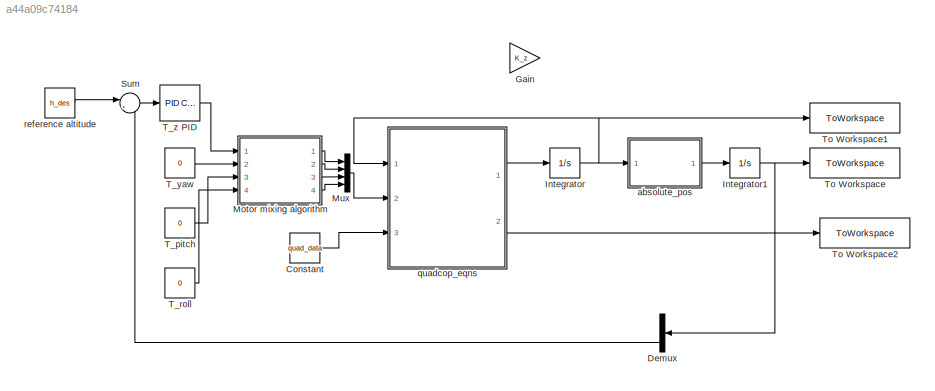
MODEL slx_a44a09c74184
KIND model
CONFIG AbsTol = auto
CONFIG EnableMultiTasking = off
CONFIG FixedStep = auto
CONFIG MaxStep = auto
CONFIG MinStep = auto
CONFIG RelTol = 1e-3
CONFIG SampleTimeConstraint = Unconstrained
CONFIG SolverName = VariableStepAuto
CONFIG StartTime = 0.0
CONFIG StopTime = 10
BLOCK [Constant] Constant
  Value = quad_data
BLOCK [Demux] Demux
  Outputs = 3
  Ports = [1, 3]
BLOCK [Gain] Gain
  Gain = K_z
BLOCK [Integrator] Integrator
  InitialCondition = y_init_conds
  Ports = [1, 1]
BLOCK [Integrator] Integrator1
  InitialCondition = [0 0 0]
  Ports = [1, 1]
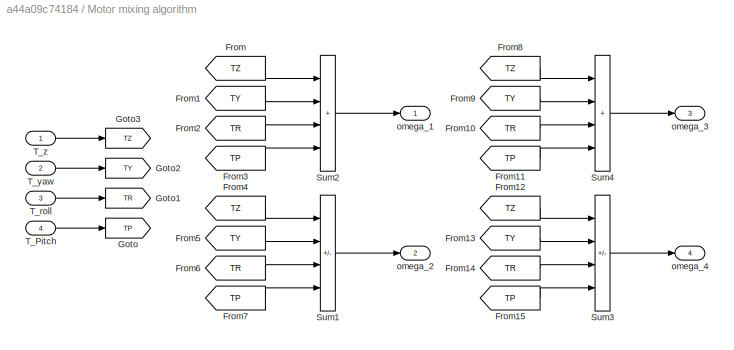
BLOCK [SubSystem] Motor mixing algorithm
  Ports = [4, 4]
  RequestExecContextInheritance = off
BLOCK [From] Motor mixing algorithm/From
  GotoTag = TZ
BLOCK [From] Motor mixing algorithm/From1
  GotoTag = TY
BLOCK [From] Motor mixing algorithm/From10
  GotoTag = TR
BLOCK [From] Motor mixing algorithm/From11
  GotoTag = TP
BLOCK [From] Motor mixing algorithm/From12
  GotoTag = TZ
BLOCK [From] Motor mixing algorithm/From13
  GotoTag = TY
BLOCK [From] Motor mixing algorithm/From14
  GotoTag = TR
BLOCK [From] Motor mixing algorithm/From15
  GotoTag = TP
BLOCK [From] Motor mixing algorithm/From2
  GotoTag = TR
BLOCK [From] Motor mixing algorithm/From3
  GotoTag = TP
BLOCK [From] Motor mixing algorithm/From4
  GotoTag = TZ
BLOCK [From] Motor mixing algorithm/From5
  GotoTag = TY
BLOCK [From] Motor mixing algorithm/From6
  GotoTag = TR
BLOCK [From] Motor mixing algorithm/From7
  GotoTag = TP
BLOCK [From] Motor mixing algorithm/From8
  GotoTag = TZ
BLOCK [From] Motor mixing algorithm/From9
  GotoTag = TY
BLOCK [Goto] Motor mixing algorithm/Goto
  GotoTag = TP
BLOCK [Goto] Motor mixing algorithm/Goto1
  GotoTag = TR
BLOCK [Goto] Motor mixing algorithm/Goto2
  GotoTag = TY
BLOCK [Goto] Motor mixing algorithm/Goto3
  GotoTag = TZ
BLOCK [Sum] Motor mixing algorithm/Sum1
  IconShape = rectangular
  Inputs = +-++
  Ports = [4, 1]
BLOCK [Sum] Motor mixing algorithm/Sum2
  IconShape = rectangular
  Inputs = ++++
  Ports = [4, 1]
BLOCK [Sum] Motor mixing algorithm/Sum3
  IconShape = rectangular
  Inputs = +-++
  Ports = [4, 1]
BLOCK [Sum] Motor mixing algorithm/Sum4
  IconShape = rectangular
  Inputs = ++++
  Ports = [4, 1]
BLOCK [Inport] Motor mixing algorithm/T_Pitch
  Port = 4
BLOCK [Inport] Motor mixing algorithm/T_roll
  Port = 3
BLOCK [Inport] Motor mixing algorithm/T_yaw
  Port = 2
BLOCK [Inport] Motor mixing algorithm/T_z
BLOCK [Outport] Motor mixing algorithm/omega_1
BLOCK [Outport] Motor mixing algorithm/omega_2
  Port = 2
BLOCK [Outport] Motor mixing algorithm/omega_3
  Port = 3
BLOCK [Outport] Motor mixing algorithm/omega_4
  Port = 4
BLOCK [Mux] Mux
  DisplayOption = bar
  Ports = [4, 1]
BLOCK [Sum] Sum
  Inputs = |+-
  Ports = [2, 1]
BLOCK [Constant] T_pitch
  Value = 0
BLOCK [Constant] T_roll
  Value = 0
BLOCK [Constant] T_yaw
  Value = 0
BLOCK [Reference] T_z PID  REF=pid_lib/PID Controller
  Ports = [1, 1]
  SourceBlock = pid_lib/PID Controller
  SourceProductBaseCode = SL
  SourceType = PID 1dof
BLOCK [ToWorkspace] To Workspace
  FixptAsFi = on
  MaxDataPoints = inf
  Ports = [1]
  SampleTime = -1
  Save2DSignal = 2-D array (concatenate along first dimension)
  VariableName = pos
BLOCK [ToWorkspace] To Workspace1
  FixptAsFi = on
  MaxDataPoints = inf
  Ports = [1]
  SampleTime = -1
  Save2DSignal = 2-D array (concatenate along first dimension)
  VariableName = velocities
BLOCK [ToWorkspace] To Workspace2
  FixptAsFi = on
  MaxDataPoints = inf
  Ports = [1]
  SampleTime = -1
  Save2DSignal = 2-D array (concatenate along first dimension)
  VariableName = externat_forces
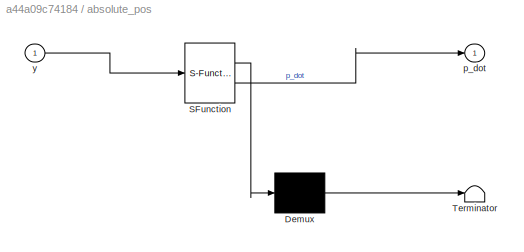
BLOCK [SubSystem] absolute_pos
  ErrorFcn = Stateflow.Translate.translate
  PermitHierarchicalResolution = ExplicitOnly
  Ports = [1, 1]
  RequestExecContextInheritance = off
  SFBlockType = MATLAB Function
  TreatAsAtomicUnit = on
BLOCK [Demux] absolute_pos/ Demux 
  Outputs = 1
  Ports = [1, 1]
BLOCK [S-Function] absolute_pos/ SFunction 
  EnableBusSupport = on
  FunctionName = sf_sfun
  PortCounts = [1 2]
  Ports = [1, 2]
  SFcnIsStateOwnerBlock = off
  SFunctionDeploymentMode = off
  Tag = Stateflow S-Function 1
BLOCK [Terminator] absolute_pos/ Terminator 
BLOCK [Outport] absolute_pos/p_dot
BLOCK [Inport] absolute_pos/y
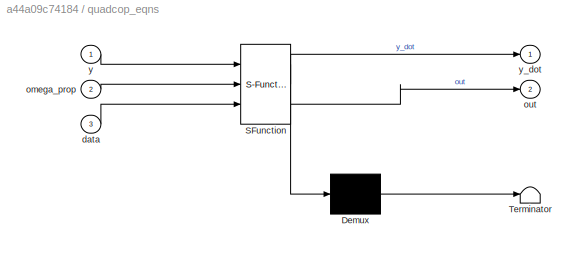
BLOCK [SubSystem] quadcop_eqns
  ErrorFcn = Stateflow.Translate.translate
  PermitHierarchicalResolution = ExplicitOnly
  Ports = [3, 2]
  RequestExecContextInheritance = off
  SFBlockType = MATLAB Function
  TreatAsAtomicUnit = on
BLOCK [Demux] quadcop_eqns/ Demux 
  Outputs = 1
  Ports = [1, 1]
BLOCK [S-Function] quadcop_eqns/ SFunction 
  EnableBusSupport = on
  FunctionName = sf_sfun
  PortCounts = [3 3]
  Ports = [3, 3]
  SFcnIsStateOwnerBlock = off
  SFunctionDeploymentMode = off
  Tag = Stateflow S-Function 2
BLOCK [Terminator] quadcop_eqns/ Terminator 
BLOCK [Inport] quadcop_eqns/data
  Port = 3
BLOCK [Inport] quadcop_eqns/omega_prop
  Port = 2
BLOCK [Outport] quadcop_eqns/out
  Port = 2
BLOCK [Inport] quadcop_eqns/y
BLOCK [Outport] quadcop_eqns/y_dot
BLOCK [Constant] reference altitude
  Value = h_des
LINE Constant:1 -> quadcop_eqns:3
LINE Demux:3 -> Sum:2
NET Integrator1:1 -> Demux:1, To Workspace:1
NET Integrator:1 -> To Workspace1:1, absolute_pos:1, quadcop_eqns:1
LINE Motor mixing algorithm/From10:1 -> Motor mixing algorithm/Sum4:3
LINE Motor mixing algorithm/From11:1 -> Motor mixing algorithm/Sum4:4
LINE Motor mixing algorithm/From12:1 -> Motor mixing algorithm/Sum3:1
LINE Motor mixing algorithm/From13:1 -> Motor mixing algorithm/Sum3:2
LINE Motor mixing algorithm/From14:1 -> Motor mixing algorithm/Sum3:3
LINE Motor mixing algorithm/From15:1 -> Motor mixing algorithm/Sum3:4
LINE Motor mixing algorithm/From1:1 -> Motor mixing algorithm/Sum2:2
LINE Motor mixing algorithm/From2:1 -> Motor mixing algorithm/Sum2:3
LINE Motor mixing algorithm/From3:1 -> Motor mixing algorithm/Sum2:4
LINE Motor mixing algorithm/From4:1 -> Motor mixing algorithm/Sum1:1
LINE Motor mixing algorithm/From5:1 -> Motor mixing algorithm/Sum1:2
LINE Motor mixing algorithm/From6:1 -> Motor mixing algorithm/Sum1:3
LINE Motor mixing algorithm/From7:1 -> Motor mixing algorithm/Sum1:4
LINE Motor mixing algorithm/From8:1 -> Motor mixing algorithm/Sum4:1
LINE Motor mixing algorithm/From9:1 -> Motor mixing algorithm/Sum4:2
LINE Motor mixing algorithm/From:1 -> Motor mixing algorithm/Sum2:1
LINE Motor mixing algorithm/Sum1:1 -> Motor mixing algorithm/omega_2:1
LINE Motor mixing algorithm/Sum2:1 -> Motor mixing algorithm/omega_1:1
LINE Motor mixing algorithm/Sum3:1 -> Motor mixing algorithm/omega_4:1
LINE Motor mixing algorithm/Sum4:1 -> Motor mixing algorithm/omega_3:1
LINE Motor mixing algorithm/T_Pitch:1 -> Motor mixing algorithm/Goto:1
LINE Motor mixing algorithm/T_roll:1 -> Motor mixing algorithm/Goto1:1
LINE Motor mixing algorithm/T_yaw:1 -> Motor mixing algorithm/Goto2:1
LINE Motor mixing algorithm/T_z:1 -> Motor mixing algorithm/Goto3:1
LINE Motor mixing algorithm:1 -> Mux:1
LINE Motor mixing algorithm:2 -> Mux:2
LINE Motor mixing algorithm:3 -> Mux:3
LINE Motor mixing algorithm:4 -> Mux:4
LINE Mux:1 -> quadcop_eqns:2
LINE Sum:1 -> T_z PID:1
LINE T_pitch:1 -> Motor mixing algorithm:3
LINE T_roll:1 -> Motor mixing algorithm:4
LINE T_yaw:1 -> Motor mixing algorithm:2
LINE T_z PID:1 -> Motor mixing algorithm:1
LINE absolute_pos:1 -> Integrator1:1
LINE quadcop_eqns:1 -> Integrator:1
LINE quadcop_eqns:2 -> To Workspace2:1
LINE reference altitude:1 -> Sum:1
note: NET lines group one-source signal fan-out (src -> all destinations, sorted); 1:1 wires keep LINE
CHART absolute_pos states=1 transitions=1
  STATE_LABEL 'eML_blk_kernel()'
  STATE_LABEL 'SCRIPT:\nfunction p_dot = fcn(y)\n  \n  % remapping ============================\n  u       = y(1);\n  v       = y(2);\n  w       = y(3);\n  omega_x = y(4);\n  omega_y = y(5);\n  omega_z = y(6);\n  phi     = y(7);\n  theta   = y(8);\n  psi     = y(9);\n  \n  % ode for absolute position (right hand side )\n  p_dot = [ ((sin(phi) * v + w * cos(phi)) * sin(theta) + cos(theta) * u) * cos(psi) + sin(psi) * (sin(phi) ...<+257ch>'
CHART quadcop_eqns states=1 transitions=1
  STATE_LABEL 'eML_blk_kernel()'
  STATE_LABEL "SCRIPT:\nfunction [y_dot , out ] = fcn(y,omega_prop,data)\n  % y' = y_dot = rhs(y,omega_prop)\n  % y = [u,v,w,omega_x,omega_y,omega_z,phi,theta,psi]\n  % y(1) = u ....\n  \n  % extract data from vector\n  g = data(1);\n  m = data(2);\n  ixx = data(3);\n  iyy = data(4);\n  izz = data(5);\n  L   = data(6);\n  CT  = data(7);\n  CQ  = data(8);\n  rho = data(9);\n  \n  \n  % remapping ============================\n  u   ...<+2184ch>"
CHART  states=0 transitions=0
CHART  states=0 transitions=0
